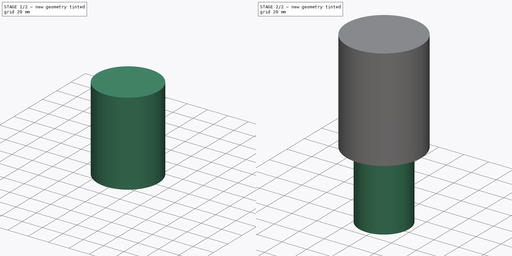
[diagram: build sequence overview — one tinted view per stage of 2, left to right]
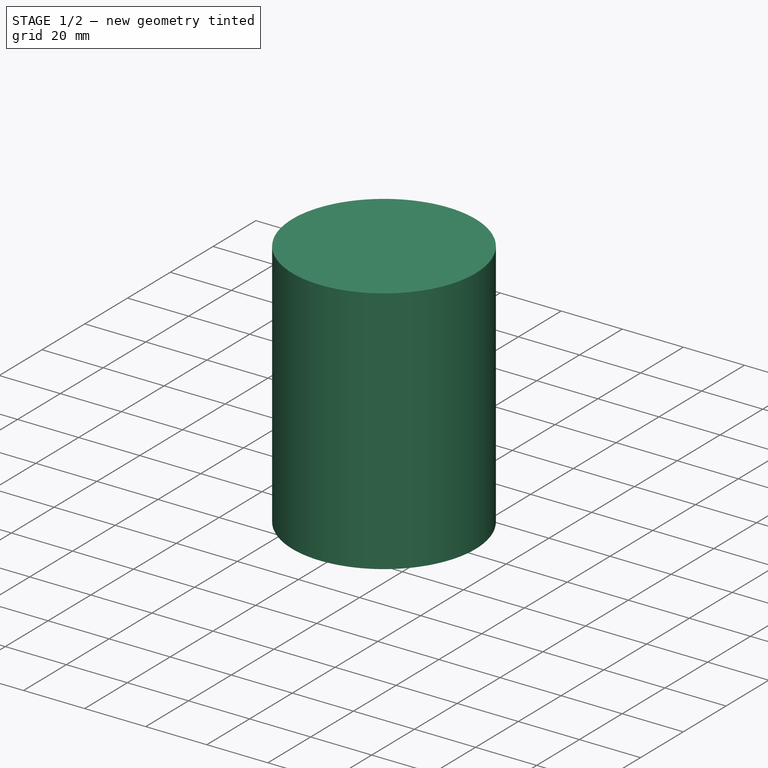
[diagram: stage 1 of 2 — iso view after this stage's code; geometry added in this stage tinted green]
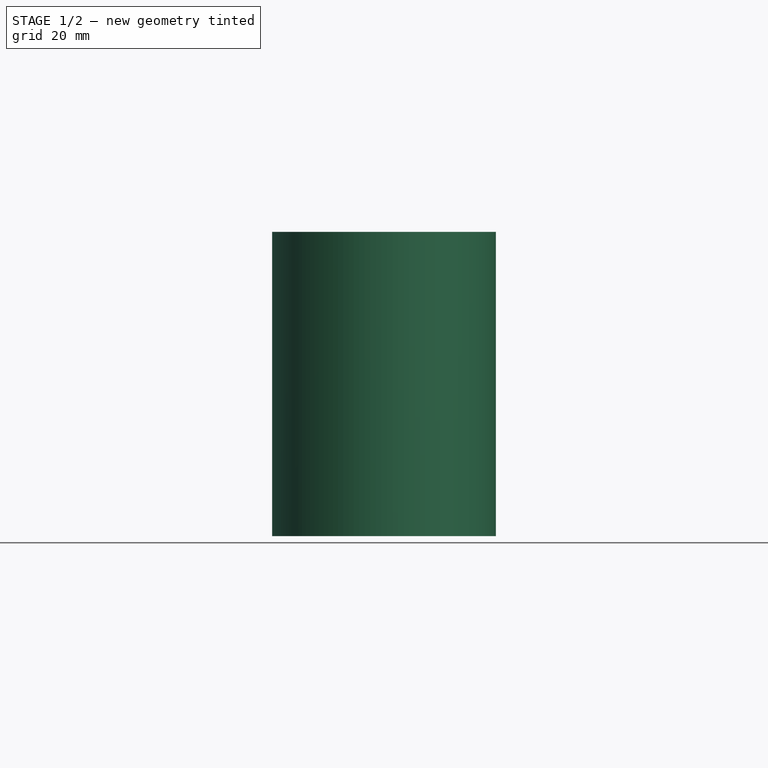
[diagram: stage 1 of 2 — front view after this stage's code; geometry added in this stage tinted green]
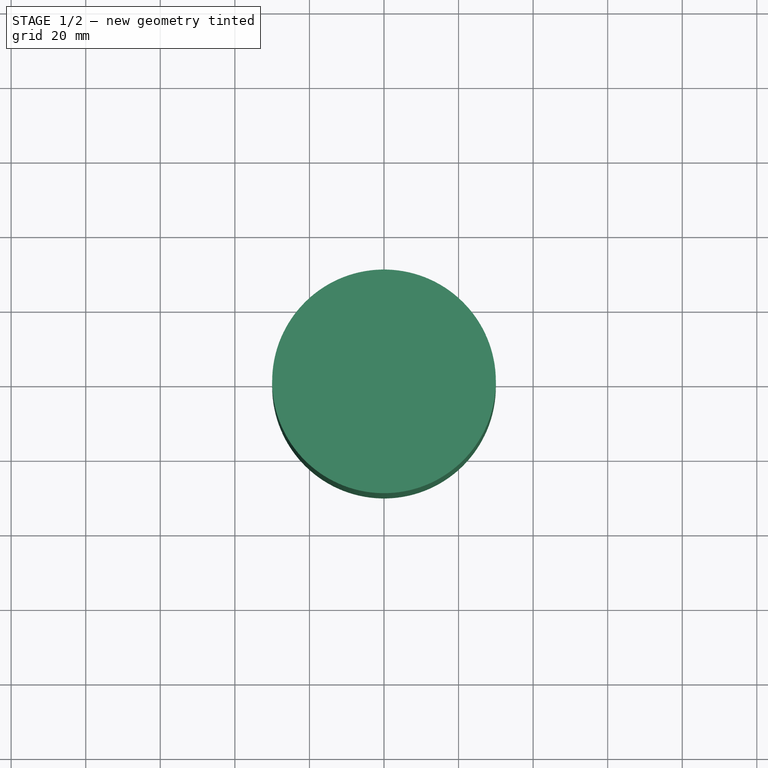
[diagram: stage 1 of 2 — top view after this stage's code; geometry added in this stage tinted green]
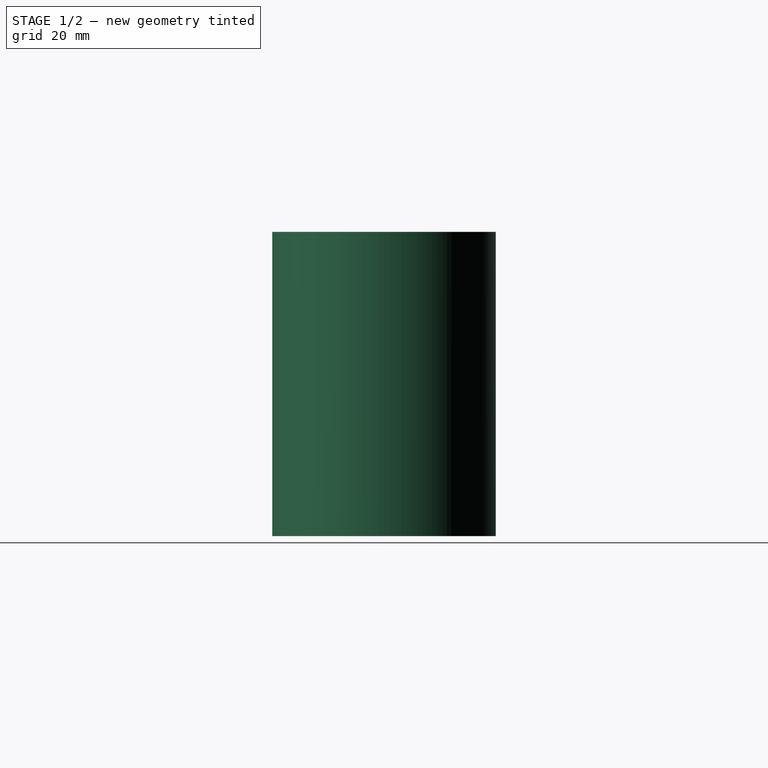
[diagram: stage 1 of 2 — right view after this stage's code; geometry added in this stage tinted green]
FCSTD DOCUMENT  (FreeCAD 0.19R24365 (Git))
Label: Hub_StubAxleShaft
License: All rights reserved
LicenseURL: http://en.wikipedia.org/wiki/All_rights_reserved
objects: PartDesign::Plane×2, Sketcher::SketchObject×2, PartDesign::Pad×2, PartDesign::Body×1, Spreadsheet::Sheet×1
note: 9 computed .brp shape members not serialized (recipe doc carries the construction recipe); baked Part::Feature solids carry a one-line shape summary decoded from their .brp
EXTERNAL_REF file=../../Master_of_Puppets.FCStd obj=Hub
EXTERNAL_REF file=../../Master_of_Puppets.FCStd obj=Spreadsheet

FEATURE [PartDesign::Plane] DatumPlane001
  Length = 60
  ResizeMode = 0
  Width = 60
FEATURE [Sketcher::SketchObject] Sketch003
  FullyConstrained = false
  MapMode = 5
  Placement = pos=(0,0,0) rot=(0,1,0;3.14159rad)
  Support = -> [DatumPlane001]
  expr: Constraints[0] = Spreadsheet.StubAxleShaftRadius
  sketch-geometry (1):
    g0: Circle CenterX=-0.005294 CenterY=0 CenterZ=0 NormalX=0 NormalY=0 NormalZ=1 AngleXU=0 Radius=30
  constraints (1):
    c: Radius(g0) = 30
FEATURE [PartDesign::Pad] Pad002  label="OuterShaft"
  AllowMultiFace = false
  Direction = (1,1,1)
  Length = 81.6
  Length2 = 100
  Profile = -> Sketch003
  Type = 0
  expr: Length = Spreadsheet.OuterShaftWidth
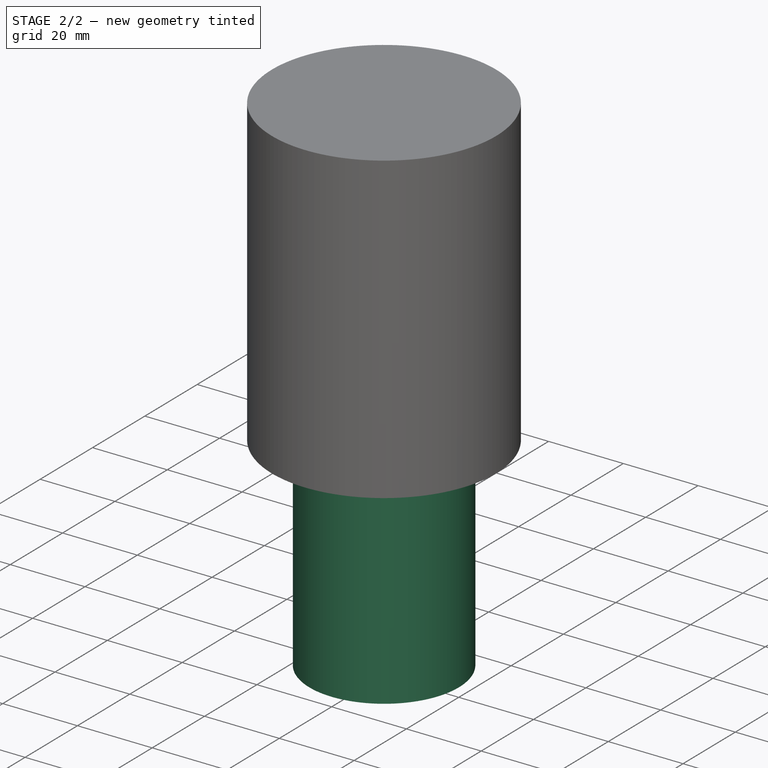
[diagram: stage 2 of 2 — iso view after this stage's code; geometry added in this stage tinted green]
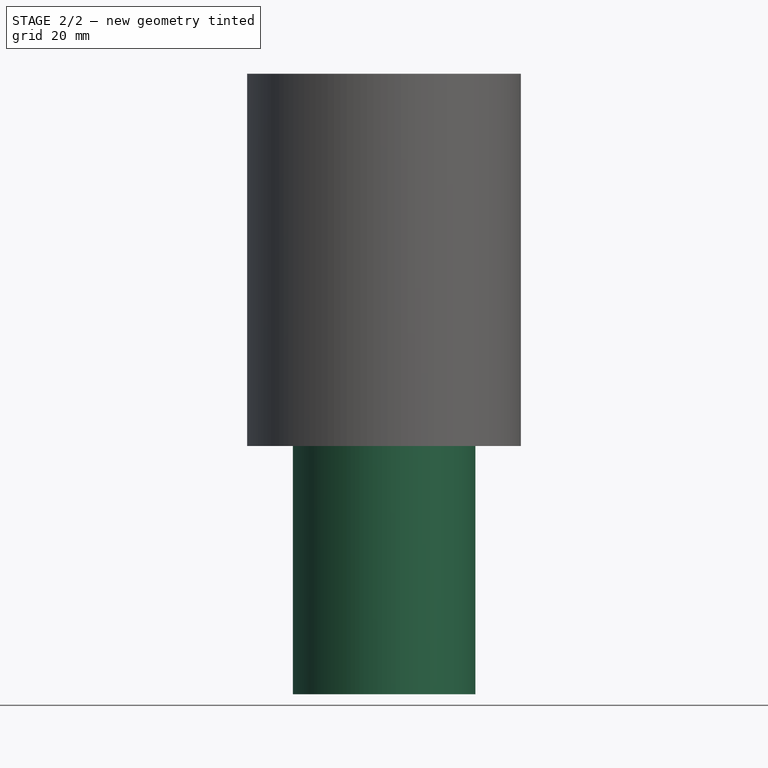
[diagram: stage 2 of 2 — front view after this stage's code; geometry added in this stage tinted green]
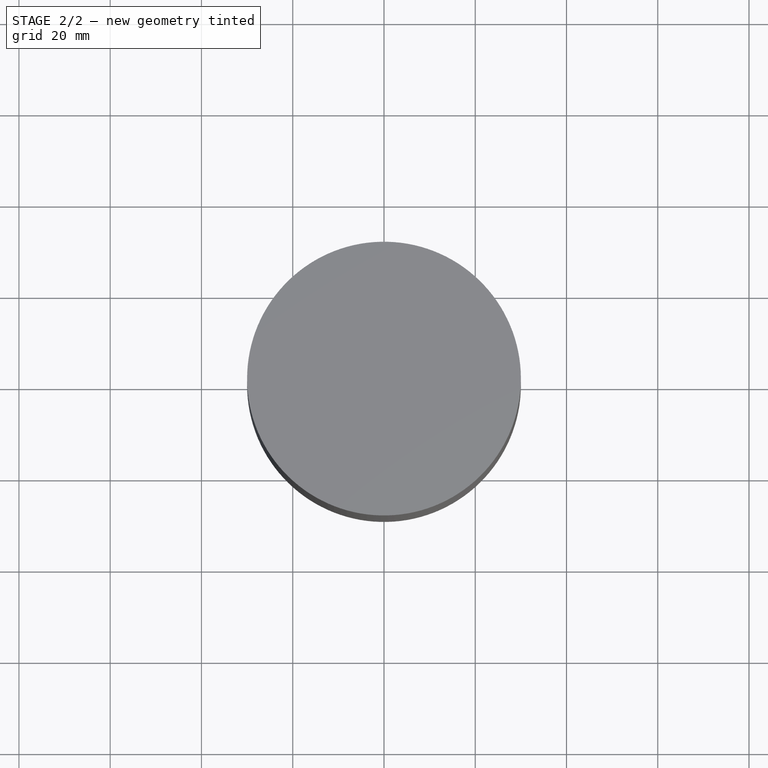
[diagram: stage 2 of 2 — top view after this stage's code; geometry added in this stage tinted green]
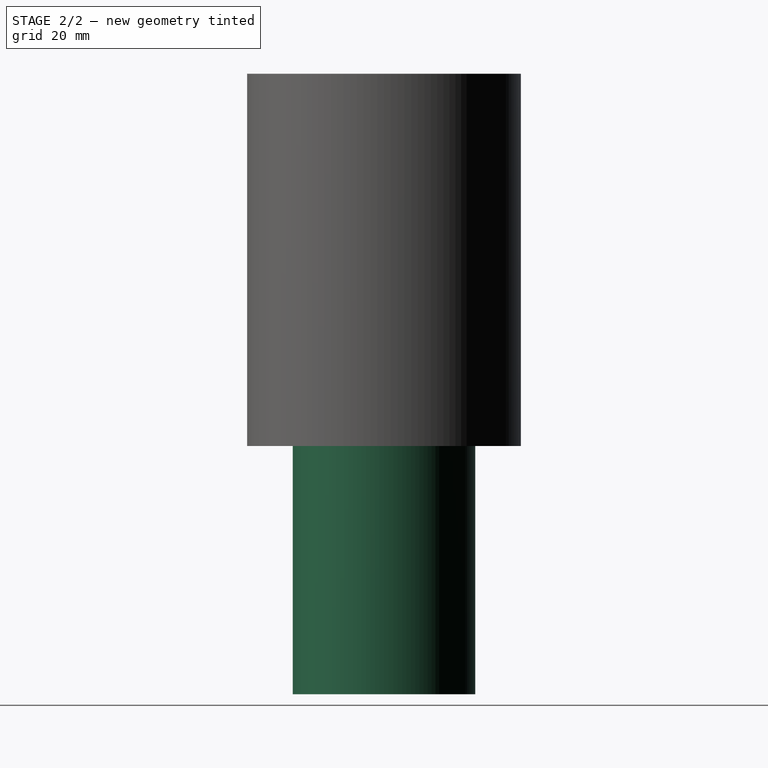
[diagram: stage 2 of 2 — right view after this stage's code; geometry added in this stage tinted green]
FEATURE [PartDesign::Plane] DatumPlane002
  Length = 60
  Placement = pos=(0,0,-81.6) rot=(0,0,1;0rad)
  ResizeMode = 0
  Width = 60
  expr: .Placement.Base.z = -Pad002.Length
FEATURE [Sketcher::SketchObject] Sketch004
  FullyConstrained = false
  MapMode = 5
  Placement = pos=(0,0,-81.6) rot=(0,1,0;3.14159rad)
  Support = -> [DatumPlane002]
  expr: Constraints[0] = Spreadsheet.StubAxleShaftRadius - 10
  sketch-geometry (1):
    g0: Circle CenterX=-0.026582 CenterY=0 CenterZ=0 NormalX=0 NormalY=0 NormalZ=1 AngleXU=0 Radius=20
  constraints (1):
    c: Radius(g0) = 20
FEATURE [PartDesign::Pad] Pad003  label="InnerShaft"
  AllowMultiFace = false
  BaseFeature = -> Pad002
  Direction = (1,1,1)
  Length = 54.4
  Length2 = 100
  Profile = -> Sketch004
  Type = 0
  expr: Length = Spreadsheet.InnerShaftWidth
FEATURE [PartDesign::Body] Body  label="Hub_StubAxleShaft"
  Group = -> [DatumPlane001,Sketch003,Pad002,DatumPlane002,Sketch004,Pad003]
  Origin = -> Origin
  Tip = -> Pad003
FEATURE [Spreadsheet::Sheet] Spreadsheet
  cells = A1=Inputs; A2=RotorDiskRadius; B2(RotorDiskRadius)==Master_of_Puppets#Spreadsheet.RotorDiskRadius; A3=StubAxleShaftRadius; B3(StubAxleShaftRadius)==Master_of_Puppets#Hub.StubAxleShaftRadius; A4=FrameSidePadWidth; B4(FrameSidePadWidth)==Master_of_Puppets#Hub.FrameSidePadWidth; A5=MiddlePadThickness; B5(MiddlePadThickness)==Master_of_Puppets#Hub.MiddlePadThickness; A6=RotorSidePadWidth; B6(RotorSidePadWidth)==Master_of_Puppets#Hub.RotorSidePadWidth; A7=StubAxleShaftLength; B7(StubAxleShaftLength)==Master_of_Puppets#Hub.StubAxleShaftLength; A8=Calculated; A9=OuterShaftWidth; B9(OuterShaftWidth)==StubAxleShaftLength * 0.6; A10=InnerShaftWidth; B10(InnerShaftWidth)==StubAxleShaftLength * 0.4
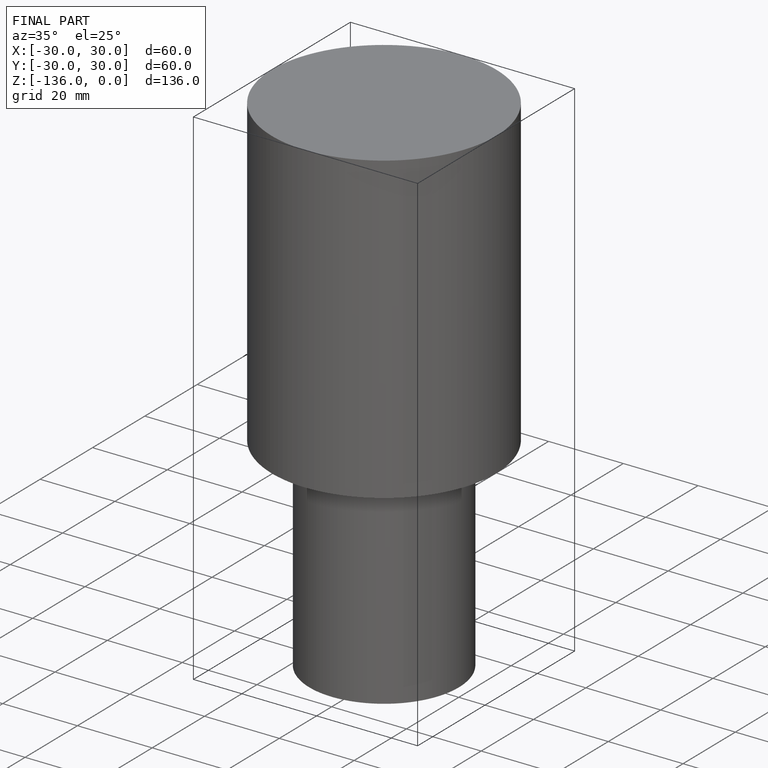
[diagram: finished part — iso view with bounding-box wireframe]
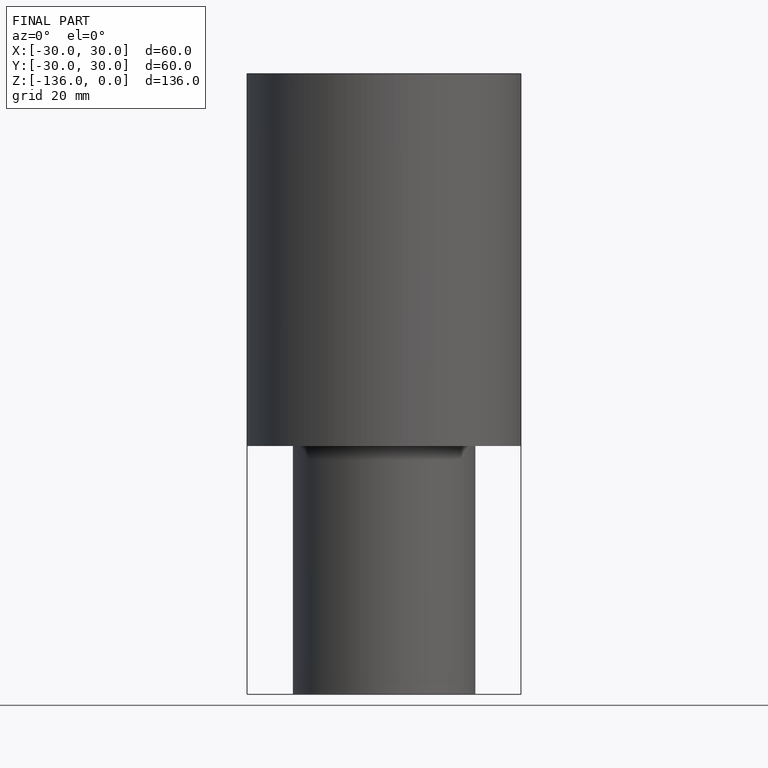
[diagram: finished part — front view with bounding-box wireframe]
